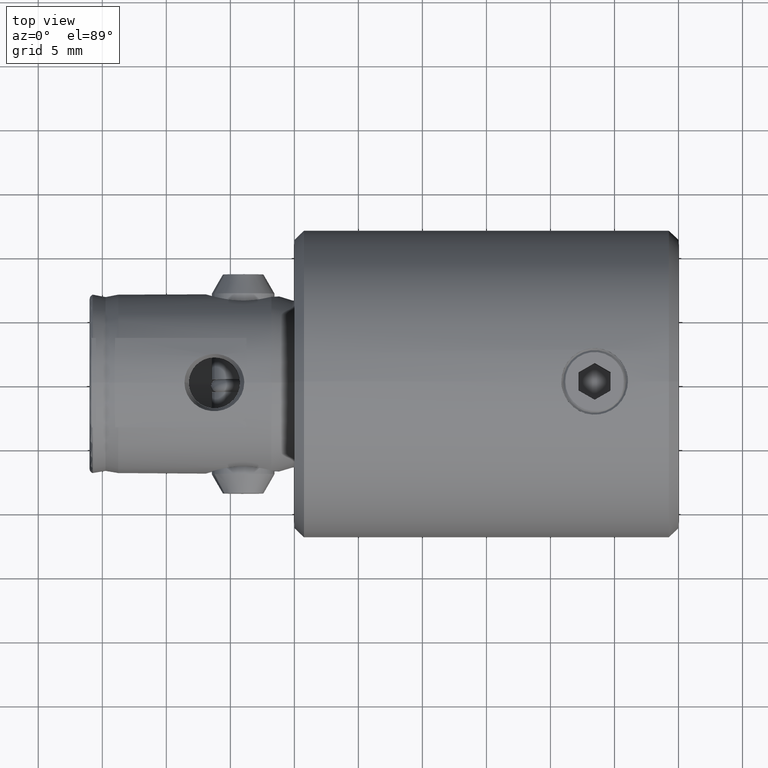
[diagram: clean part render]
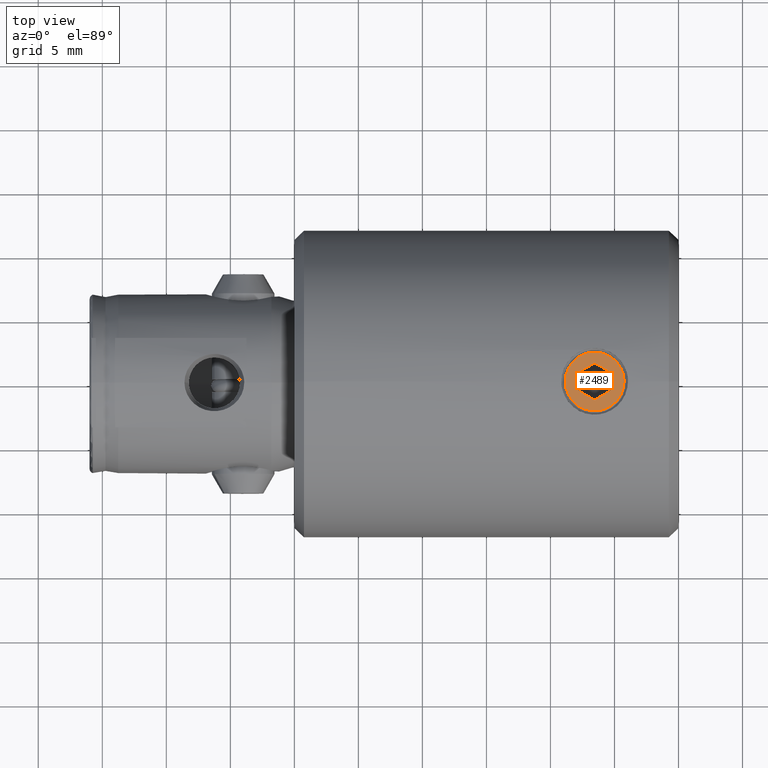
[diagram: same view with one face highlighted and labeled with its STEP entity id]
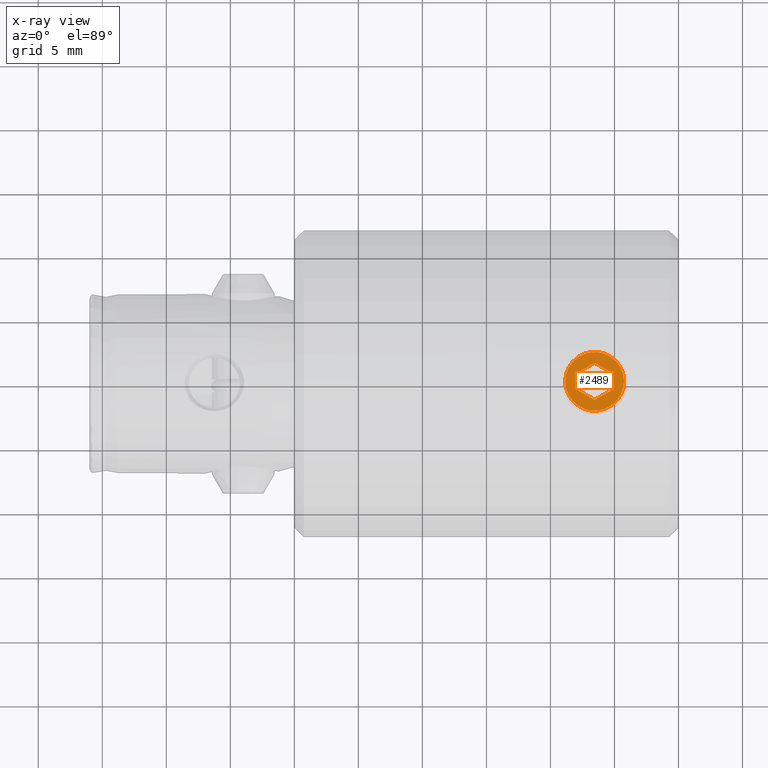
[diagram: x-ray of the same camera — body ghosted, the highlighted face saturated]
A machine part, top view. The second image highlights one B-rep face of the part: STEP entity #2489.
The next image is the same camera in x-ray: the body ghosted, the highlighted face saturated — about 0% of this face is hidden behind the body in this view.
In plain terms, the highlighted planar face has unit normal (0, -0, -1).
Its self-contained STEP definition (entity closure, byte-faithful):
#81 = DIRECTION ( 'NONE',  ( 0.0000000000000000000, 3.157196726277788400E-016, -1.000000000000000000 ) ) ;
#110 = VERTEX_POINT ( 'NONE', #1875 ) ;
#111 = EDGE_LOOP ( 'NONE', ( #2042, #3871, #2449, #3730, #3433, #2997 ) ) ;
#194 = EDGE_CURVE ( 'NONE', #3279, #884, #3822, .T. ) ;
#225 = EDGE_CURVE ( 'NONE', #2432, #4081, #2988, .T. ) ;
#256 = CARTESIAN_POINT ( 'NONE',  ( 0.0000000000000000000, 0.8098939978184727100, 1.194740576707334200 ) ) ;
#447 = VECTOR ( 'NONE', #2545, 1000.000000000000000 ) ;
#496 = VECTOR ( 'NONE', #1290, 1000.000000000000000 ) ;
#530 = EDGE_LOOP ( 'NONE', ( #1551, #3496 ) ) ;
#542 = VECTOR ( 'NONE', #2016, 1000.000000000000000 ) ;
#551 = CARTESIAN_POINT ( 'NONE',  ( 0.0000000000000000000, 0.0000000000000000000, 0.0000000000000000000 ) ) ;
#578 = CARTESIAN_POINT ( 'NONE',  ( -1.734723475976807100E-015, 0.6297286914513922100, -1.298759064836979600 ) ) ;
#677 = AXIS2_PLACEMENT_3D ( 'NONE', #551, #849, #3201 ) ;
#687 = CARTESIAN_POINT ( 'NONE',  ( -1.734723475976807100E-015, 1.439622689269837200, -0.1040184881296590800 ) ) ;
#689 = LINE ( 'NONE', #4222, #496 ) ;
#835 = PLANE ( 'NONE',  #677 ) ;
#849 = DIRECTION ( 'NONE',  ( 1.000000000000000000, -3.469446951953613000E-017, -1.095372655870239800E-032 ) ) ;
#884 = VERTEX_POINT ( 'NONE', #3223 ) ;
#966 = LINE ( 'NONE', #578, #2758 ) ;
#1038 = DIRECTION ( 'NONE',  ( -1.000000000000000000, 3.469446951953613600E-017, -0.0000000000000000000 ) ) ;
#1108 = CARTESIAN_POINT ( 'NONE',  ( -3.081487911019557400E-030, -4.603425355593490600E-016, 2.299999999999996700 ) ) ;
#1239 = EDGE_CURVE ( 'NONE', #884, #3542, #3854, .T. ) ;
#1290 = DIRECTION ( 'NONE',  ( -3.122502256758252200E-017, 0.9973998566177285600, -0.07206612254682816200 ) ) ;
#1375 = EDGE_CURVE ( 'NONE', #4081, #1991, #3564, .T. ) ;
#1551 = ORIENTED_EDGE ( 'NONE', *, *, #2909, .T. ) ;
#1815 = CARTESIAN_POINT ( 'NONE',  ( -1.734723475976807100E-015, -0.8098939978184449600, -1.194740576707320500 ) ) ;
#1819 = CARTESIAN_POINT ( 'NONE',  ( 0.0000000000000000000, 0.8098939978184727100, 1.194740576707334200 ) ) ;
#1875 = CARTESIAN_POINT ( 'NONE',  ( 0.0000000000000000000, 7.261552470438904000E-016, -2.299999999999997200 ) ) ;
#1884 = FACE_OUTER_BOUND ( 'NONE', #530, .T. ) ;
#1991 = VERTEX_POINT ( 'NONE', #2583 ) ;
#2016 = DIRECTION ( 'NONE',  ( -2.775557561562890100E-017, 0.4362888354310685600, -0.8998066748353237300 ) ) ;
#2042 = ORIENTED_EDGE ( 'NONE', *, *, #1375, .F. ) ;
#2061 = DIRECTION ( 'NONE',  ( -1.000000000000000000, 3.469446951953613600E-017, -0.0000000000000000000 ) ) ;
#2095 = CIRCLE ( 'NONE', #3269, 2.299999999999997200 ) ;
#2132 = CARTESIAN_POINT ( 'NONE',  ( -1.734723475976807100E-015, 1.439622689269837200, -0.1040184881296590800 ) ) ;
#2343 = VERTEX_POINT ( 'NONE', #1108 ) ;
#2355 = DIRECTION ( 'NONE',  ( 0.0000000000000000000, -0.5611110211866594500, -0.8277405522884958600 ) ) ;
#2391 = CARTESIAN_POINT ( 'NONE',  ( -1.734723475976807100E-015, -0.8098939978184449600, -1.194740576707320500 ) ) ;
#2432 = VERTEX_POINT ( 'NONE', #1819 ) ;
#2449 = ORIENTED_EDGE ( 'NONE', *, *, #2680, .F. ) ;
#2489 = ADVANCED_FACE ( 'NONE', ( #3640, #1884 ), #835, .F. ) ;
#2545 = DIRECTION ( 'NONE',  ( 2.775557561562890100E-017, -0.4362888354310687200, 0.8998066748353236200 ) ) ;
#2583 = CARTESIAN_POINT ( 'NONE',  ( -1.734723475976807100E-015, 0.6297286914513922100, -1.298759064836979600 ) ) ;
#2680 = EDGE_CURVE ( 'NONE', #3542, #2432, #689, .T. ) ;
#2692 = AXIS2_PLACEMENT_3D ( 'NONE', #3053, #1038, #3379 ) ;
#2703 = VECTOR ( 'NONE', #2355, 1000.000000000000100 ) ;
#2758 = VECTOR ( 'NONE', #4162, 1000.000000000000200 ) ;
#2909 = EDGE_CURVE ( 'NONE', #110, #2343, #2095, .T. ) ;
#2968 = DIRECTION ( 'NONE',  ( 0.0000000000000000000, 0.5611110211866595600, 0.8277405522884958600 ) ) ;
#2988 = LINE ( 'NONE', #256, #542 ) ;
#2997 = ORIENTED_EDGE ( 'NONE', *, *, #3088, .F. ) ;
#3013 = VECTOR ( 'NONE', #2968, 1000.000000000000100 ) ;
#3053 = CARTESIAN_POINT ( 'NONE',  ( 0.0000000000000000000, 0.0000000000000000000, 0.0000000000000000000 ) ) ;
#3088 = EDGE_CURVE ( 'NONE', #1991, #3279, #966, .T. ) ;
#3201 = DIRECTION ( 'NONE',  ( 0.0000000000000000000, 3.157196726277788400E-016, -1.000000000000000000 ) ) ;
#3223 = CARTESIAN_POINT ( 'NONE',  ( 0.0000000000000000000, -1.439622689269837200, 0.1040184881296729600 ) ) ;
#3269 = AXIS2_PLACEMENT_3D ( 'NONE', #4010, #2061, #81 ) ;
#3279 = VERTEX_POINT ( 'NONE', #1815 ) ;
#3295 = CARTESIAN_POINT ( 'NONE',  ( 0.0000000000000000000, -1.439622689269837200, 0.1040184881296729600 ) ) ;
#3379 = DIRECTION ( 'NONE',  ( 0.0000000000000000000, 3.157196726277788400E-016, -1.000000000000000000 ) ) ;
#3433 = ORIENTED_EDGE ( 'NONE', *, *, #194, .F. ) ;
#3454 = CIRCLE ( 'NONE', #2692, 2.299999999999997200 ) ;
#3496 = ORIENTED_EDGE ( 'NONE', *, *, #3901, .T. ) ;
#3542 = VERTEX_POINT ( 'NONE', #3904 ) ;
#3564 = LINE ( 'NONE', #687, #2703 ) ;
#3640 = FACE_BOUND ( 'NONE', #111, .T. ) ;
#3730 = ORIENTED_EDGE ( 'NONE', *, *, #1239, .F. ) ;
#3822 = LINE ( 'NONE', #2391, #447 ) ;
#3854 = LINE ( 'NONE', #3295, #3013 ) ;
#3871 = ORIENTED_EDGE ( 'NONE', *, *, #225, .F. ) ;
#3901 = EDGE_CURVE ( 'NONE', #2343, #110, #3454, .T. ) ;
#3904 = CARTESIAN_POINT ( 'NONE',  ( 0.0000000000000000000, -0.6297286914513922100, 1.298759064836993500 ) ) ;
#4010 = CARTESIAN_POINT ( 'NONE',  ( 0.0000000000000000000, 0.0000000000000000000, 0.0000000000000000000 ) ) ;
#4081 = VERTEX_POINT ( 'NONE', #2132 ) ;
#4162 = DIRECTION ( 'NONE',  ( 3.469446951953613000E-017, -0.9973998566177284500, 0.07206612254682864800 ) ) ;
#4222 = CARTESIAN_POINT ( 'NONE',  ( 0.0000000000000000000, -0.6297286914513922100, 1.298759064836993500 ) ) ;